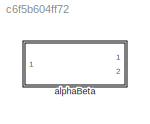
MODEL slx_c6f5b604ff72
KIND library
CONFIG AbsTol = auto
CONFIG EnableMultiTasking = off
CONFIG FixedStep = auto
CONFIG MaxStep = auto
CONFIG MinStep = auto
CONFIG RelTol = 1e-3
CONFIG SampleTimeConstraint = Unconstrained
CONFIG Solver = VariableStepAuto
CONFIG SolverName = VariableStepAuto
CONFIG StartTime = 0.0
CONFIG StopTime = 10.0
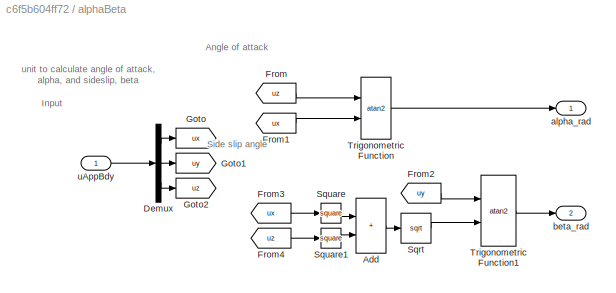
BLOCK [SubSystem] alphaBeta
  MinAlgLoopOccurrences = on
  Ports = [1, 2]
  RequestExecContextInheritance = off
  TreatAsAtomicUnit = on
BLOCK [Sum] alphaBeta/Add
  IconShape = rectangular
  Ports = [2, 1]
BLOCK [Demux] alphaBeta/Demux
  Outputs = 3
  Ports = [1, 3]
BLOCK [From] alphaBeta/From
  GotoTag = uz
BLOCK [From] alphaBeta/From1
  GotoTag = ux
BLOCK [From] alphaBeta/From2
  GotoTag = uy
BLOCK [From] alphaBeta/From3
  GotoTag = ux
BLOCK [From] alphaBeta/From4
  GotoTag = uz
BLOCK [Goto] alphaBeta/Goto
  GotoTag = ux
BLOCK [Goto] alphaBeta/Goto1
  GotoTag = uy
BLOCK [Goto] alphaBeta/Goto2
  GotoTag = uz
BLOCK [Sqrt] alphaBeta/Sqrt
BLOCK [Math] alphaBeta/Square
  Operator = square
  Ports = [1, 1]
  SignedPower = on
BLOCK [Math] alphaBeta/Square1
  Operator = square
  Ports = [1, 1]
  SignedPower = on
BLOCK [Trigonometry] alphaBeta/Trigonometric Function
  Operator = atan2
  Ports = [2, 1]
BLOCK [Trigonometry] alphaBeta/Trigonometric Function1
  Operator = atan2
  Ports = [2, 1]
BLOCK [Outport] alphaBeta/alpha_rad
  VectorParamsAs1DForOutWhenUnconnected = off
BLOCK [Outport] alphaBeta/beta_rad
  Port = 2
  VectorParamsAs1DForOutWhenUnconnected = off
BLOCK [Inport] alphaBeta/uAppBdy
ANNOTATION alphaBeta: Angle of attack
ANNOTATION alphaBeta: Input
ANNOTATION alphaBeta: Side slip angle
ANNOTATION alphaBeta: unit to calculate angle of attack, alpha, and sideslip, beta
LINE alphaBeta/Add:1 -> alphaBeta/Sqrt:1
LINE alphaBeta/Demux:1 -> alphaBeta/Goto:1
LINE alphaBeta/Demux:2 -> alphaBeta/Goto1:1
LINE alphaBeta/Demux:3 -> alphaBeta/Goto2:1
LINE alphaBeta/From1:1 -> alphaBeta/Trigonometric Function:2
LINE alphaBeta/From2:1 -> alphaBeta/Trigonometric Function1:1
LINE alphaBeta/From3:1 -> alphaBeta/Square:1
LINE alphaBeta/From4:1 -> alphaBeta/Square1:1
LINE alphaBeta/From:1 -> alphaBeta/Trigonometric Function:1
LINE alphaBeta/Sqrt:1 -> alphaBeta/Trigonometric Function1:2
LINE alphaBeta/Square1:1 -> alphaBeta/Add:2
LINE alphaBeta/Square:1 -> alphaBeta/Add:1
LINE alphaBeta/Trigonometric Function1:1 -> alphaBeta/beta_rad:1
LINE alphaBeta/Trigonometric Function:1 -> alphaBeta/alpha_rad:1
LINE alphaBeta/uAppBdy:1 -> alphaBeta/Demux:1
